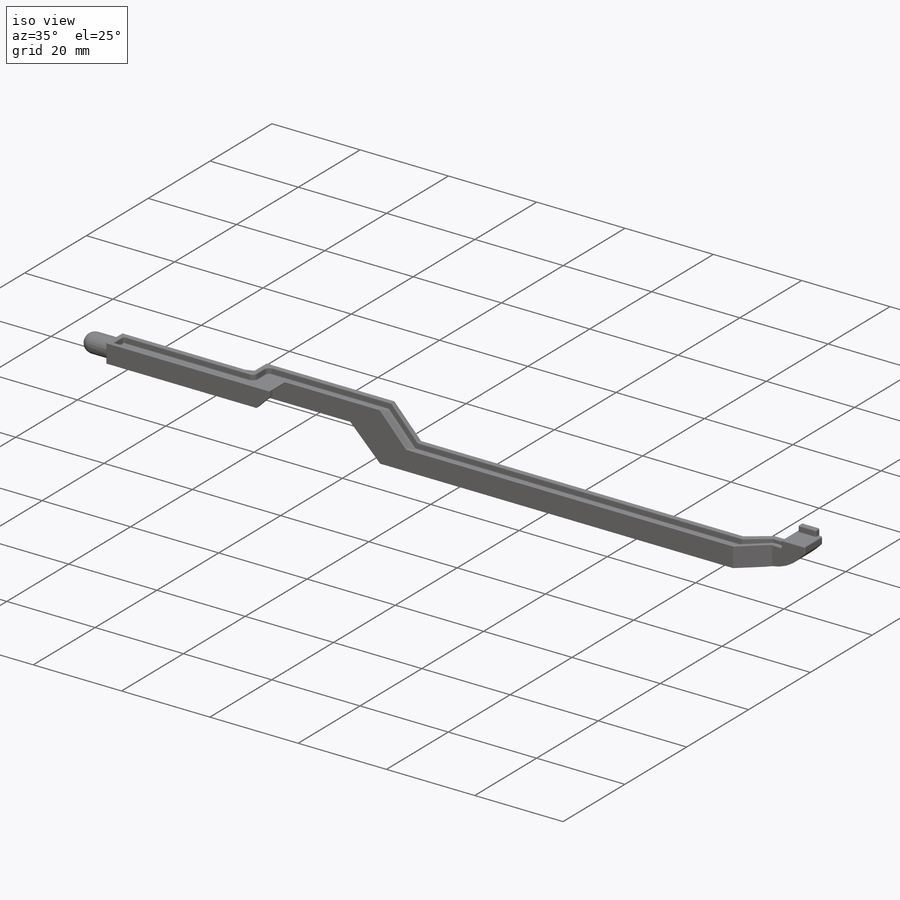
[diagram: iso view]
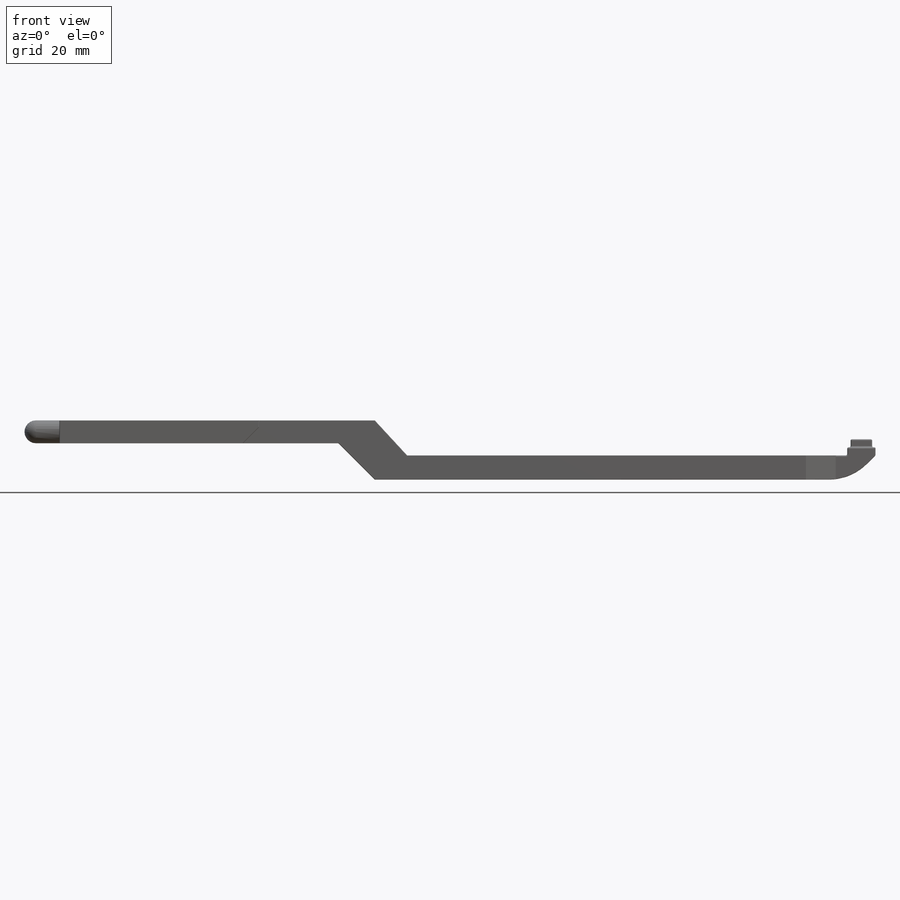
[diagram: front view]
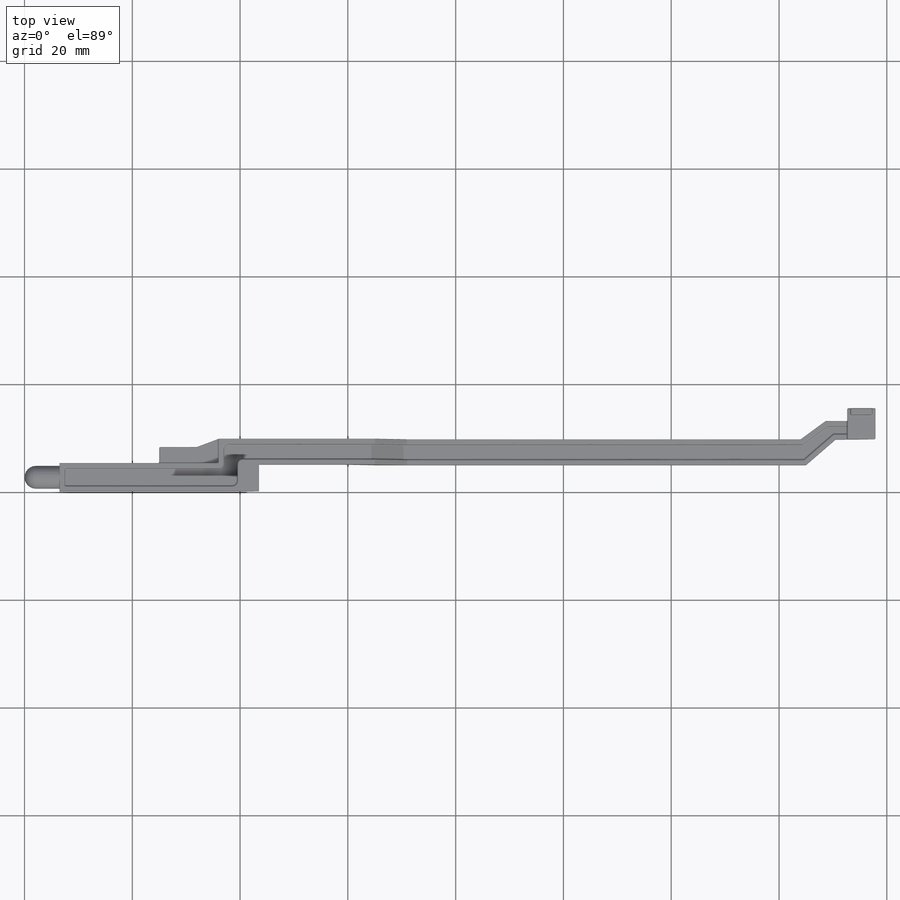
[diagram: top view]
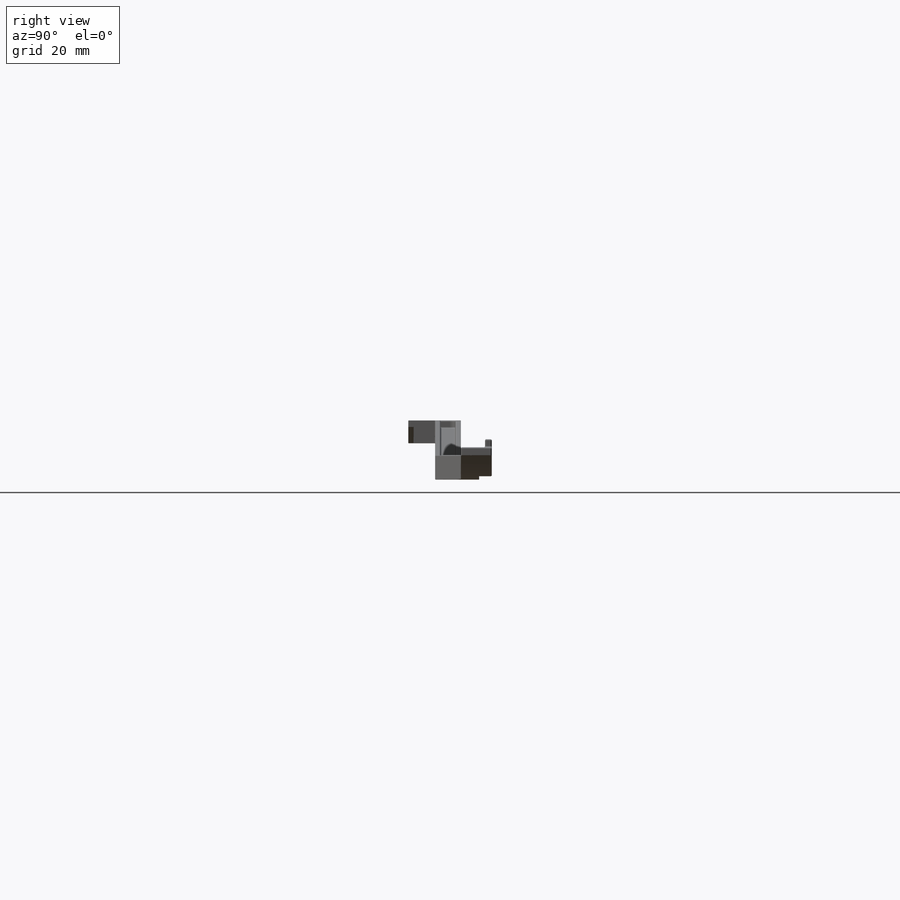
[diagram: right view]
SOLIDWORKS PART (.sldprt)
format: sldprt  version: not decoded by parser v0  size: 1,437,696 bytes
history: native  units: mm
features: sketch x17, cut_extrude x12, fillet x12, extrude x5, chamfer x2, material x1 (+11 scaffold rows collapsed)
feature tree (60):
  scaffold x11  (default folders/planes/origin — collapsed)
  material  "Material <not specified>"
  sketch  "Sketch1"  dims[c1.D1=~6.729144mm c1.D2=~64.520621mm c2.D1=4.25mm c2.D2=65.0mm c2.D3=~5.805536mm c2.D4=~80.798131mm c3.D3=4.5mm c3.D4=80.0mm c3.D5=11.0mm c3.D6=6.0mm c3.D7=0.0mm c3.D8=6.0mm c4.D3=59.0mm c5.D3=135.0deg c5.D4=65.0mm c6.D4=~132.70939deg c6.D6=4.5mm c6.D7=93.0mm c6.D8=0.0mm]
  extrude  "Boss-Extrude1"  Depth=9.75mm
  sketch  "Sketch2"  dims[c1.D1=~3.296043mm c1.D2=~25.578969mm c2.D1=5.25mm c2.D2=25.0mm c2.D3=~1.540847mm c2.D4=~12.812152mm c3.D3=3.0mm c3.D4=7.0mm c3.D5=4.0mm c3.D6=25.0mm c3.D7=4.0mm c3.D8=~3.876211mm c3.D9=~117.08588mm c4.D8=5.0mm c4.D9=43.5mm]
  cut_extrude  "Cut-Extrude1"  Depth=19.75mm
  sketch  "Sketch3"  dims[D1=7.5mm D2=13.0mm D3=~7.267221mm]
  cut_extrude  "Cut-Extrude2"  Depth=19.75mm
  sketch  "Sketch4"  dims[D1=7.4mm D2=5.75mm D3=5.25mm D4=3.4mm D5=6.5mm D6=4.0mm]
  extrude  "Boss-Extrude2"  Depth=4.5mm
  sketch  "Sketch5"  dims[D1=0.0mm]
  cut_extrude  "Cut-Extrude3"  Depth=6.5mm
  sketch  "Sketch6"  dims[D1=2.625mm]
  extrude  "Boss-Extrude3"  Depth=6.5mm
  sketch  "Sketch7"  dims[D1=~4.272002mm]
  cut_extrude  "Cut-Extrude4"  Depth=1.75mm
  sketch  "Sketch8"  dims[D1=3.0mm]
  cut_extrude  "Cut-Extrude5"  Depth=1.75mm
  chamfer  "Chamfer1"  Distance=4.5mm
  sketch  "Sketch9"  dims[D1=5.75mm D2=5.25mm]
  extrude  "Boss-Extrude4"  Depth=1.5mm
  sketch  "Sketch10"  dims[c1.D1=~0.832459mm c1.D2=~3.001898mm c2.D1=4.0mm c2.D2=1.25mm c2.D3=0.0mm c2.D4=0.625mm]
  extrude  "Boss-Extrude5"  Depth=1.5mm
  fillet  "Fillet3"  Radius=10mm
  sketch  "Sketch11"  dims[c1.D1=~3.75781mm c1.D2=~3.58499mm c2.D1=1.0mm c2.D2=3.4mm]
  cut_extrude  "Cut-Extrude6"  Depth=4mm
  chamfer  "Chamfer2"  Distance=3mm
  sketch  "Sketch13"  dims[c1.D2=1.0mm c1.D3=1.0mm c1.D4=1.0mm c1.D1=1.0mm c2.D4=1.0mm c2.D5=1.0mm c2.D6=1.0mm c2.D7=1.0mm c2.D8=1.0mm c2.D9=1.0mm c2.D10=4.0mm c2.D11=1.625mm c3.D8=1.625mm c3.D11=1.625mm c4.D8=1.625mm c4.D11=0.0mm c4.D12=0.0mm c4.D13=2.75mm c4.D1=1.0mm]
  sketch  "Sketch14"  dims[D3=~21.156345mm D1=1.0mm D2=1.0mm]
  sketch  "Sketch15"  dims[D3=1.4mm D1=1.0mm D2=1.0mm]
  cut_extrude  "Cut-Extrude7"  Depth=1.5mm
  cut_extrude  "Cut-Extrude8"  Depth=1.5mm
  cut_extrude  "Cut-Extrude9"  Depth=1.5mm
  sketch  "Sketch17"  dims[D2=2.75mm D1=1.0mm]
  sketch  "Sketch18"  dims[D3=2.75mm D1=1.0mm D2=1.0mm]
  sketch  "Sketch19"  dims[D1=1.0mm]
  cut_extrude  "Cut-Extrude10"  Depth=1.5mm
  cut_extrude  "Cut-Extrude11"  Depth=1.5mm
  cut_extrude  "Cut-Extrude12"  Depth=1.5mm
  fillet  "Fillet13"  Radius=0.25mm
  fillet  "Fillet14"  Radius=0.25mm
  fillet  "Fillet15"  Radius=0.25mm
  fillet  "Fillet16"  Radius=0.25mm
  fillet  "Fillet19"  Radius=0.1mm
  fillet  "Fillet20"  Radius=0.1mm
  fillet  "Fillet21"  Radius=0.1mm
  fillet  "Fillet22"  Radius=0.1mm
  fillet  "Fillet24"  Radius=2.125mm
  fillet  "Fillet25"  Radius=0.1mm
  fillet  "Fillet26"  Radius=0.1mm
decode coverage: 48 of 48 modeling features carry decoded parameters
note: ~ marks probable driven/reference dimensions
note: suppression state not decoded; provenance and decode notes live in map.json
